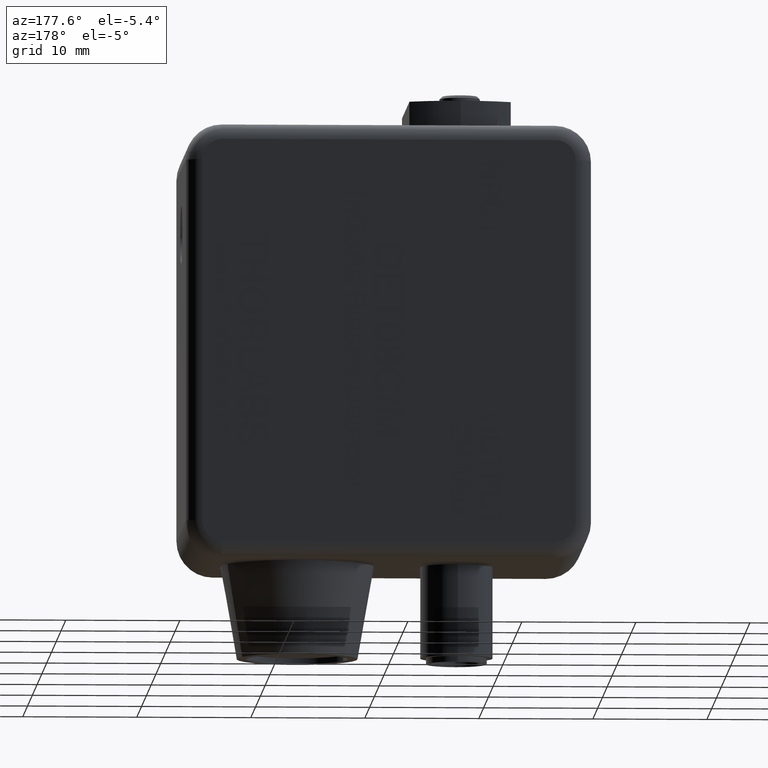
[diagram: clean part render]
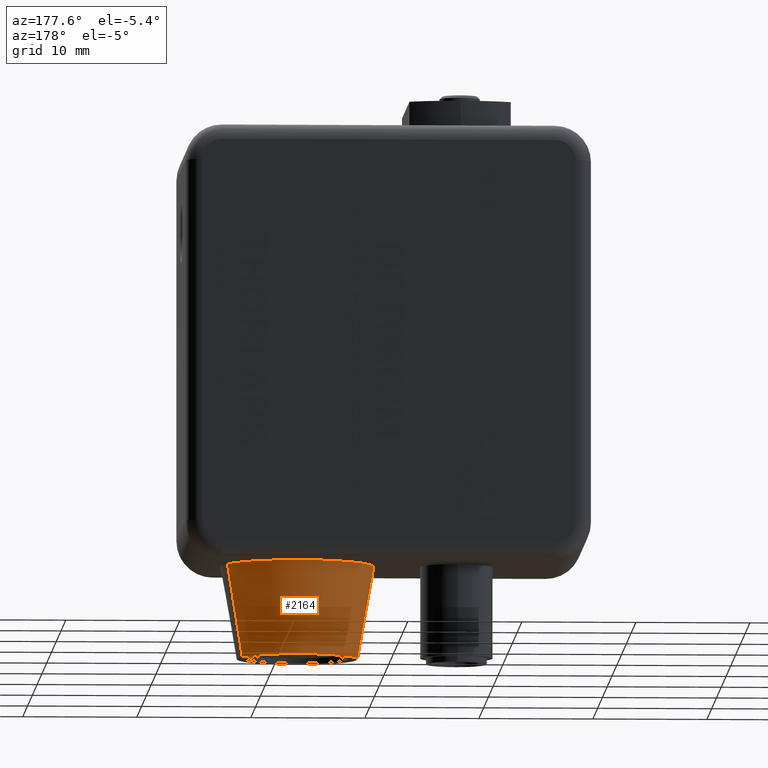
[diagram: same view with one face highlighted and labeled with its STEP entity id]
A machine part, auxiliary view. The second image highlights one B-rep face of the part: STEP entity #2164.
In plain terms, the highlighted conical surface has half-angle 10 deg.
Its self-contained STEP definition (entity closure, byte-faithful):
#1762 = CIRCLE ( 'NONE', #51016, 0.2085753661732908700 ) ;
#1769 = LINE ( 'NONE', #68043, #1776 ) ;
#1773 = CIRCLE ( 'NONE', #51017, 0.2650000000000000100 ) ;
#1776 = VECTOR ( 'NONE', #68041, 39.37007874015748100 ) ;
#1778 = LINE ( 'NONE', #68047, #1781 ) ;
#1781 = VECTOR ( 'NONE', #68042, 39.37007874015748100 ) ;
#2164 = ADVANCED_FACE ( 'NONE', ( #25579 ), #25588, .T. ) ;
#9206 = EDGE_CURVE ( 'NONE', #28391, #28657, #1762, .T. ) ;
#9207 = EDGE_CURVE ( 'NONE', #28391, #28956, #1769, .T. ) ;
#9208 = EDGE_CURVE ( 'NONE', #28956, #28812, #1773, .T. ) ;
#9209 = EDGE_CURVE ( 'NONE', #28657, #28812, #1778, .T. ) ;
#18680 = ORIENTED_EDGE ( 'NONE', *, *, #9206, .F. ) ;
#18954 = ORIENTED_EDGE ( 'NONE', *, *, #9209, .F. ) ;
#18993 = ORIENTED_EDGE ( 'NONE', *, *, #9207, .T. ) ;
#19030 = ORIENTED_EDGE ( 'NONE', *, *, #9208, .T. ) ;
#25579 = FACE_OUTER_BOUND ( 'NONE', #28140, .T. ) ;
#25588 = CONICAL_SURFACE ( 'NONE', #30883, 0.2085753661732908700, 0.1745329251994339500 ) ;
#28140 = EDGE_LOOP ( 'NONE', ( #18680, #18993, #19030, #18954 ) ) ;
#28391 = VERTEX_POINT ( 'NONE', #66063 ) ;
#28657 = VERTEX_POINT ( 'NONE', #66439 ) ;
#28812 = VERTEX_POINT ( 'NONE', #66654 ) ;
#28956 = VERTEX_POINT ( 'NONE', #66864 ) ;
#30883 = AXIS2_PLACEMENT_3D ( 'NONE', #85362, #85363, #85373 ) ;
#51016 = AXIS2_PLACEMENT_3D ( 'NONE', #68044, #68045, #68046 ) ;
#51017 = AXIS2_PLACEMENT_3D ( 'NONE', #68048, #68049, #68050 ) ;
#66063 = CARTESIAN_POINT ( 'NONE',  ( 0.2085753661732908700, 2.899812781695782300E-017, 7.582401355855258100E-033 ) ) ;
#66439 = CARTESIAN_POINT ( 'NONE',  ( -0.2085753661732908700, 0.0000000000000000000, 7.582401355855258100E-033 ) ) ;
#66654 = CARTESIAN_POINT ( 'NONE',  ( -0.2650000000000000100, 0.0000000000000000000, -0.3200000000000000600 ) ) ;
#66864 = CARTESIAN_POINT ( 'NONE',  ( 0.2650000000000000100, 3.245314017740486200E-017, -0.3200000000000000600 ) ) ;
#68041 = DIRECTION ( 'NONE',  ( 0.1736481776669313300, 2.126576849575783600E-017, -0.9848077530122078000 ) ) ;
#68042 = DIRECTION ( 'NONE',  ( -0.1736481776669313300, 0.0000000000000000000, -0.9848077530122078000 ) ) ;
#68043 = CARTESIAN_POINT ( 'NONE',  ( 0.2085753661732908700, 2.554311545651078100E-017, 7.582401355855258100E-033 ) ) ;
#68044 = CARTESIAN_POINT ( 'NONE',  ( 0.0000000000000000000, 0.0000000000000000000, 7.582401355855258100E-033 ) ) ;
#68045 = DIRECTION ( 'NONE',  ( -0.0000000000000000000, -0.0000000000000000000, 1.000000000000000000 ) ) ;
#68046 = DIRECTION ( 'NONE',  ( 1.000000000000000000, 0.0000000000000000000, 0.0000000000000000000 ) ) ;
#68047 = CARTESIAN_POINT ( 'NONE',  ( -0.2085753661732908700, 0.0000000000000000000, 7.582401355855258100E-033 ) ) ;
#68048 = CARTESIAN_POINT ( 'NONE',  ( 0.0000000000000000000, 0.0000000000000000000, -0.3200000000000000600 ) ) ;
#68049 = DIRECTION ( 'NONE',  ( -0.0000000000000000000, -0.0000000000000000000, 1.000000000000000000 ) ) ;
#68050 = DIRECTION ( 'NONE',  ( 1.000000000000000000, 0.0000000000000000000, 0.0000000000000000000 ) ) ;
#85362 = CARTESIAN_POINT ( 'NONE',  ( 0.0000000000000000000, 0.0000000000000000000, 7.582401355855258100E-033 ) ) ;
#85363 = DIRECTION ( 'NONE',  ( 0.0000000000000000000, 0.0000000000000000000, -1.000000000000000000 ) ) ;
#85373 = DIRECTION ( 'NONE',  ( -1.000000000000000000, 0.0000000000000000000, 0.0000000000000000000 ) ) ;